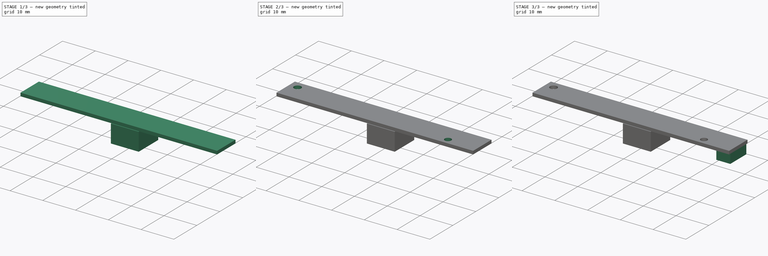
[diagram: build sequence overview — one tinted view per stage of 3, left to right]
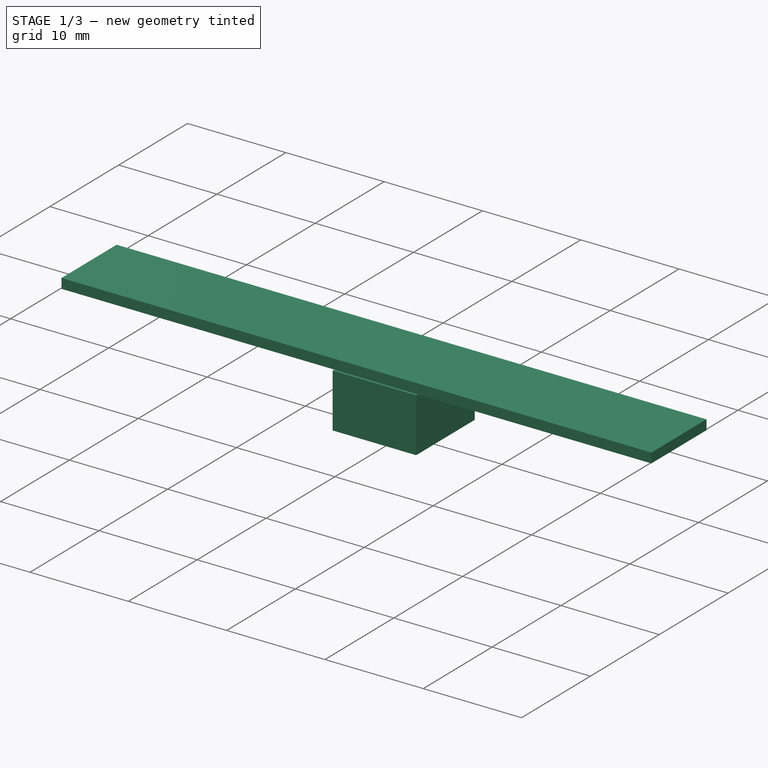
[diagram: stage 1 of 3 — iso view after this stage's code; geometry added in this stage tinted green]
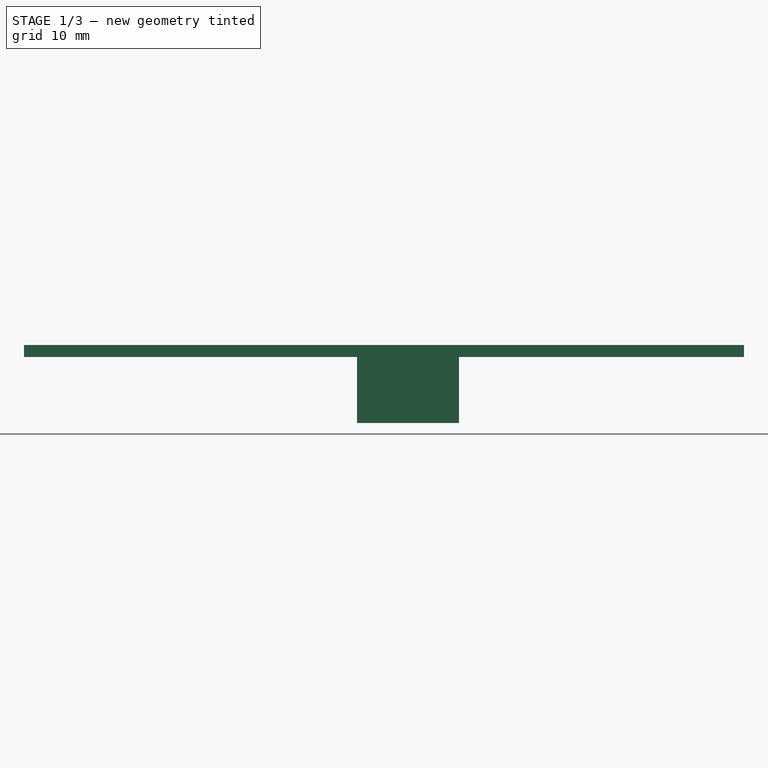
[diagram: stage 1 of 3 — front view after this stage's code; geometry added in this stage tinted green]
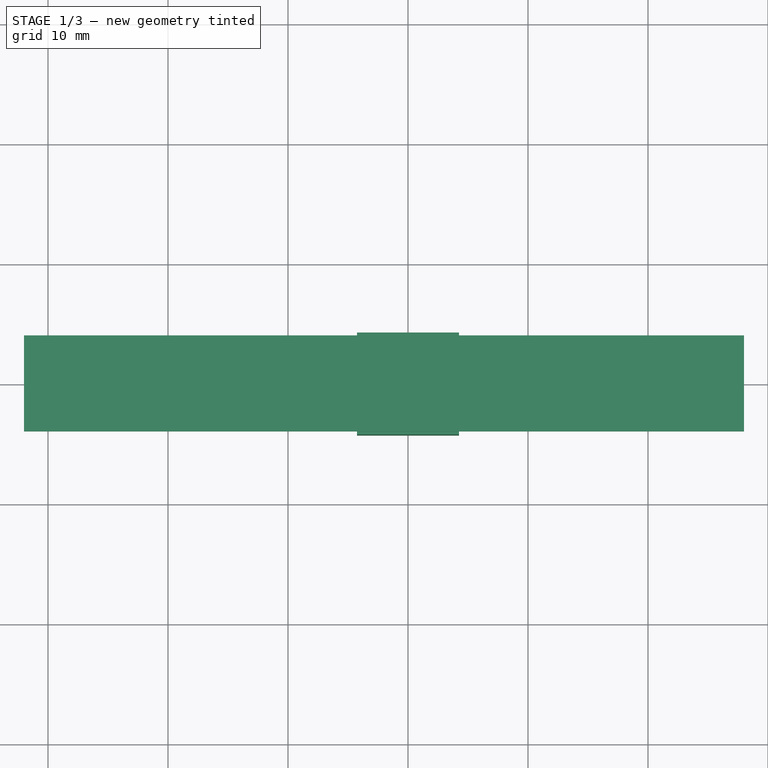
[diagram: stage 1 of 3 — top view after this stage's code; geometry added in this stage tinted green]
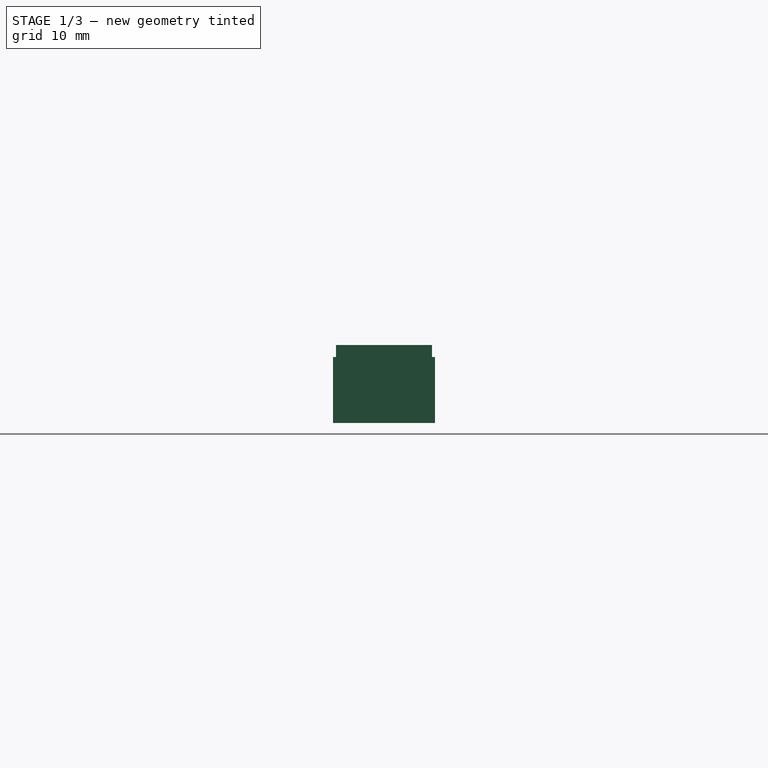
[diagram: stage 1 of 3 — right view after this stage's code; geometry added in this stage tinted green]
FCSTD DOCUMENT  (FreeCAD 0.16R5150 (Git))
Label: delock_96000
License: All rights reserved
LicenseURL: http://en.wikipedia.org/wiki/All_rights_reserved
objects: Sketcher::SketchObject×5, PartDesign::Pad×3, PartDesign::Pocket×2
note: 15 computed .brp shape members not serialized (recipe doc carries the construction recipe); baked Part::Feature solids carry a one-line shape summary decoded from their .brp

FEATURE [Sketcher::SketchObject] Sketch
  sketch-geometry (6):
    g0: LineSegment StartX=-4.25 StartY=4.25 StartZ=0 EndX=4.25 EndY=4.25 EndZ=0
    g1: LineSegment StartX=4.25 StartY=4.25 StartZ=0 EndX=4.25 EndY=-4.25 EndZ=0
    g2: LineSegment StartX=4.25 StartY=-4.25 StartZ=0 EndX=-4.25 EndY=-4.25 EndZ=0
    g3: LineSegment StartX=-4.25 StartY=-4.25 StartZ=0 EndX=-4.25 EndY=4.25 EndZ=0
    g4: LineSegment [constr] StartX=-4.25 StartY=-4.25 StartZ=0 EndX=4.25 EndY=4.25 EndZ=0
    g5: LineSegment [constr] StartX=-4.25 StartY=4.25 StartZ=0 EndX=4.25 EndY=-4.25 EndZ=0
  constraints (16):
    c: Coincident(g0,g1)
    c: Coincident(g1,g2)
    c: Coincident(g2,g3)
    c: Coincident(g3,g0)
    c: Horizontal(g0)
    c: Horizontal(g2)
    c: Vertical(g1)
    c: Vertical(g3)
    c: Distance(g0) = 8.5
    c: Distance(g3) = 8.5
    c: Coincident(g4,g2)
    c: Coincident(g4,g0)
    c: Coincident(g5,g0)
    c: Coincident(g5,g1)
    c: PointOnObject(g-1,g5)
    c: PointOnObject(g-1,g4)
FEATURE [PartDesign::Pad] Pad
  Length = 5.5
  Length2 = 100
  Sketch = -> Sketch
  Type = 0
FEATURE [Sketcher::SketchObject] Sketch001
  ExternalGeometry = -> [Pad]
  Placement = pos=(0,0,5.5) rot=(0,0,1;0rad)
  Support = -> Pad [Face6]
  sketch-geometry (12):
    g0: LineSegment StartX=-32 StartY=4 StartZ=0 EndX=28 EndY=4 EndZ=0
    g1: LineSegment StartX=28 StartY=4 StartZ=0 EndX=28 EndY=-4 EndZ=0
    g2: LineSegment StartX=28 StartY=-4 StartZ=0 EndX=-32 EndY=-4 EndZ=0
    g3: LineSegment StartX=-32 StartY=-4 StartZ=0 EndX=-32 EndY=4 EndZ=0
    g4: LineSegment StartX=-4.25 StartY=4.25 StartZ=0 EndX=4.25 EndY=4.25 EndZ=0
    g5: LineSegment [constr] StartX=4.25 StartY=4.25 StartZ=0 EndX=4.25 EndY=4 EndZ=0
    g6: LineSegment StartX=4.25 StartY=4 StartZ=0 EndX=-4.25 EndY=4 EndZ=0
    g7: LineSegment [constr] StartX=-4.25 StartY=4 StartZ=0 EndX=-4.25 EndY=4.25 EndZ=0
    g8: LineSegment StartX=-4.25 StartY=-4.25 StartZ=0 EndX=4.25 EndY=-4.25 EndZ=0
    g9: LineSegment [constr] StartX=4.25 StartY=-4.25 StartZ=0 EndX=4.25 EndY=-4 EndZ=0
    g10: LineSegment StartX=4.25 StartY=-4 StartZ=0 EndX=-4.25 EndY=-4 EndZ=0
    g11: LineSegment [constr] StartX=-4.25 StartY=-4 StartZ=0 EndX=-4.25 EndY=-4.25 EndZ=0
  constraints (34):
    c: Coincident(g0,g1)
    c: Coincident(g1,g2)
    c: Coincident(g2,g3)
    c: Coincident(g3,g0)
    c: Horizontal(g0)
    c: Horizontal(g2)
    c: Vertical(g1)
    c: Vertical(g3)
    c: Coincident(g4,g5)
    c: Coincident(g5,g6)
    c: Coincident(g6,g7)
    c: Coincident(g7,g4)
    c: Horizontal(g4)
    c: Horizontal(g6)
    c: Vertical(g5)
    c: Vertical(g7)
    c: Coincident(g4,g-3)
    c: PointOnObject(g5,g0)
    c: Coincident(g4,g-3)
    c: Coincident(g8,g9)
    c: Coincident(g9,g10)
    c: Coincident(g10,g11)
    c: Coincident(g11,g8)
    c: Horizontal(g8)
    c: Horizontal(g10)
    c: Vertical(g9)
    c: Vertical(g11)
    c: Coincident(g8,g-4)
    c: PointOnObject(g9,g2)
    c: Coincident(g8,g-4)
    c: Equal(g9,g5)
    c: DistanceY(g5,g9) = -8
    c: Distance(g2) = 60
    c: DistanceX(g-1,g2) = -32
FEATURE [PartDesign::Pad] Pad001
  Length = 1
  Length2 = 100
  Sketch = -> Sketch001
  Type = 0
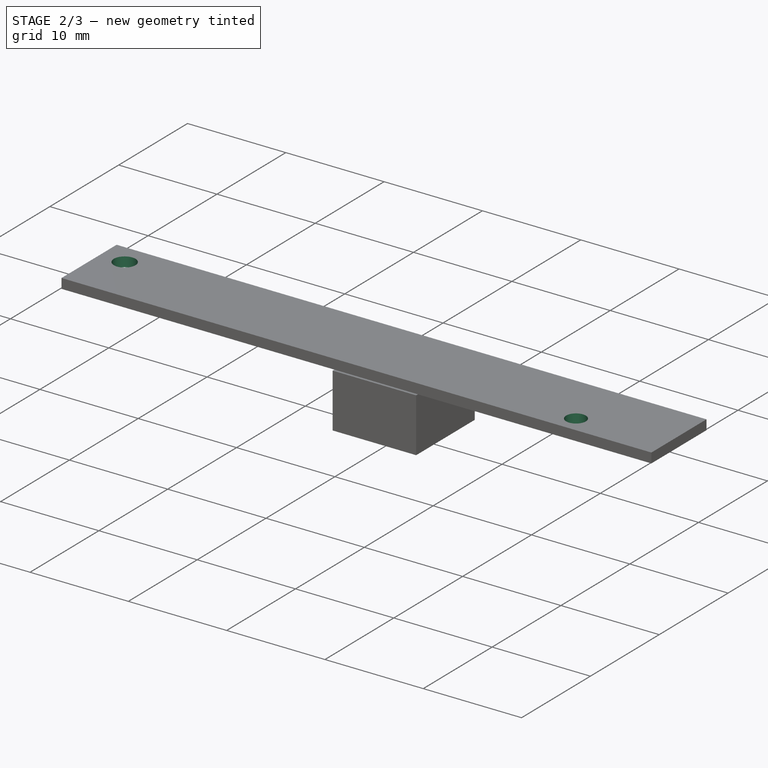
[diagram: stage 2 of 3 — iso view after this stage's code; geometry added in this stage tinted green]
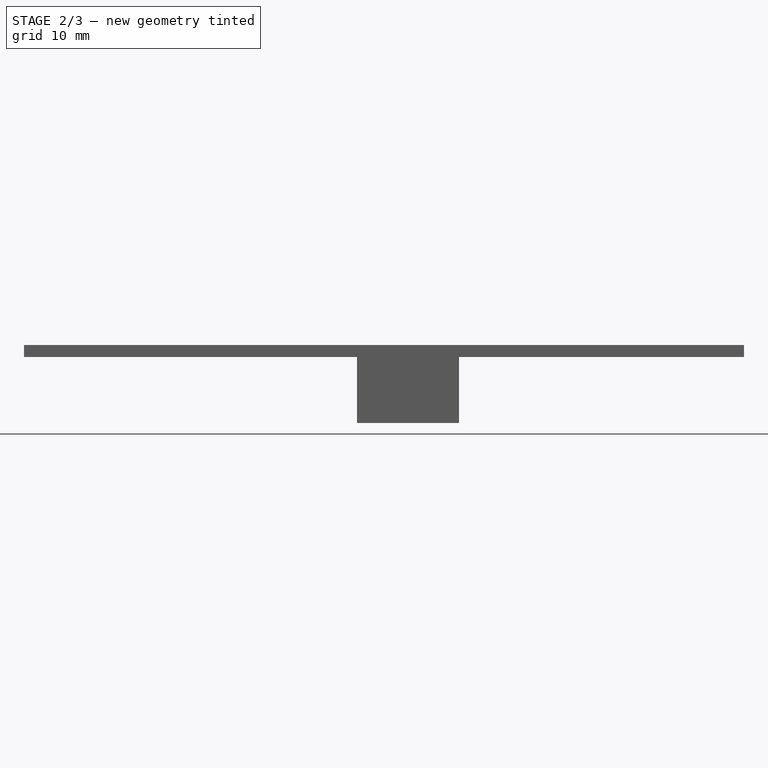
[diagram: stage 2 of 3 — front view after this stage's code; geometry added in this stage tinted green]
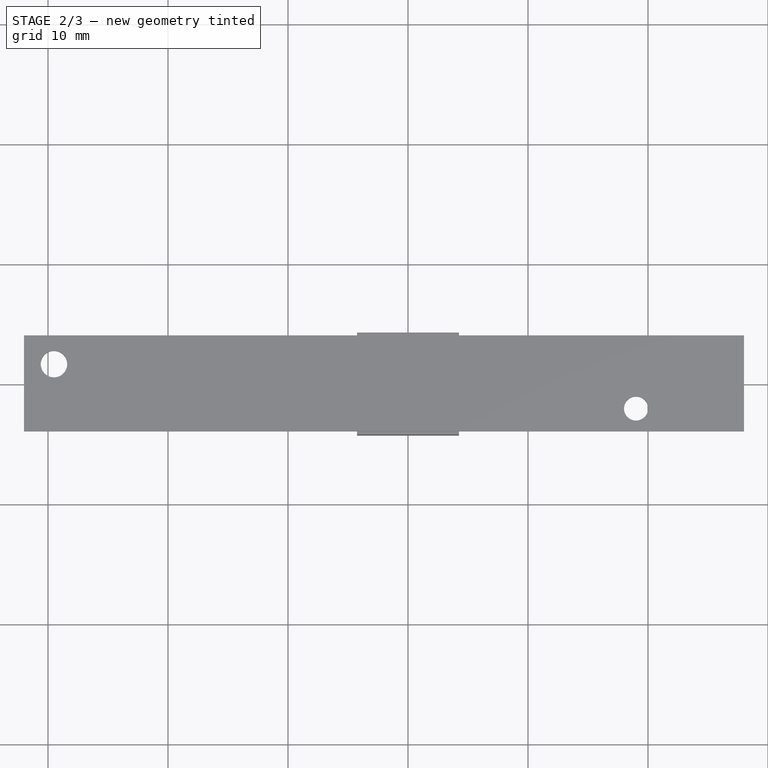
[diagram: stage 2 of 3 — top view after this stage's code; geometry added in this stage tinted green]
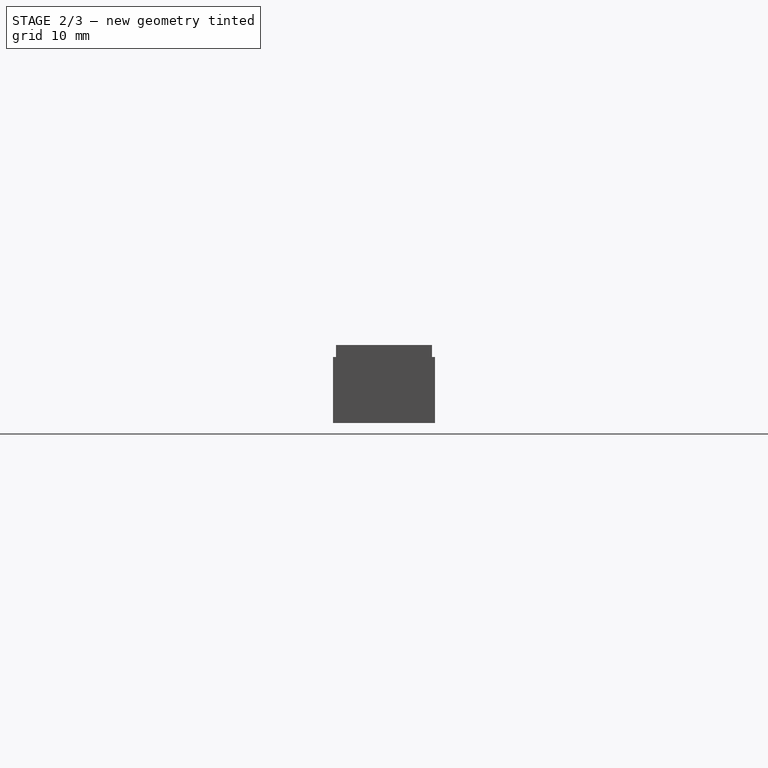
[diagram: stage 2 of 3 — right view after this stage's code; geometry added in this stage tinted green]
FEATURE [Sketcher::SketchObject] Sketch002
  ExternalGeometry = -> [Pad001]
  Placement = pos=(0,0,6.5) rot=(0,0,1;0rad)
  Support = -> Pad001 [Face14]
  sketch-geometry (2):
    g0: Circle CenterX=19 CenterY=-2.1 CenterZ=0 NormalX=0 NormalY=0 NormalZ=1 Radius=1
    g1: Circle CenterX=-29.5 CenterY=1.6 CenterZ=0 NormalX=0 NormalY=0 NormalZ=1 Radius=1.1
  constraints (6):
    c: Radius(g0) = 1
    c: Radius(g1) = 1.1
    c: DistanceY(g0,g-3) = -1.9
    c: DistanceX(g0,g-3) = 9
    c: DistanceX(g1,g-4) = -2.5
    c: DistanceY(g1,g-4) = 2.4
FEATURE [PartDesign::Pocket] Pocket
  Length = 5
  Sketch = -> Sketch002
  Type = 1
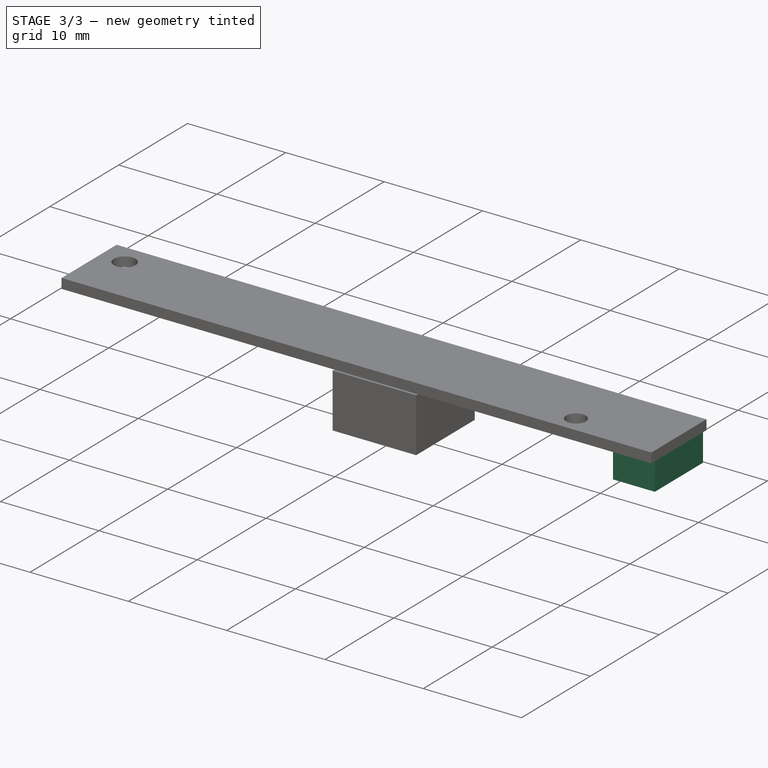
[diagram: stage 3 of 3 — iso view after this stage's code; geometry added in this stage tinted green]
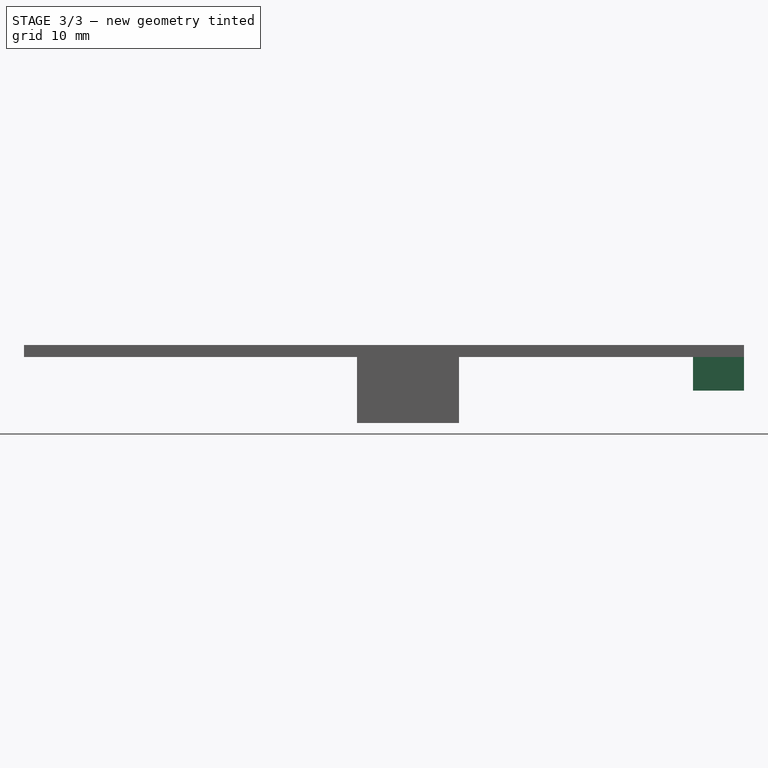
[diagram: stage 3 of 3 — front view after this stage's code; geometry added in this stage tinted green]
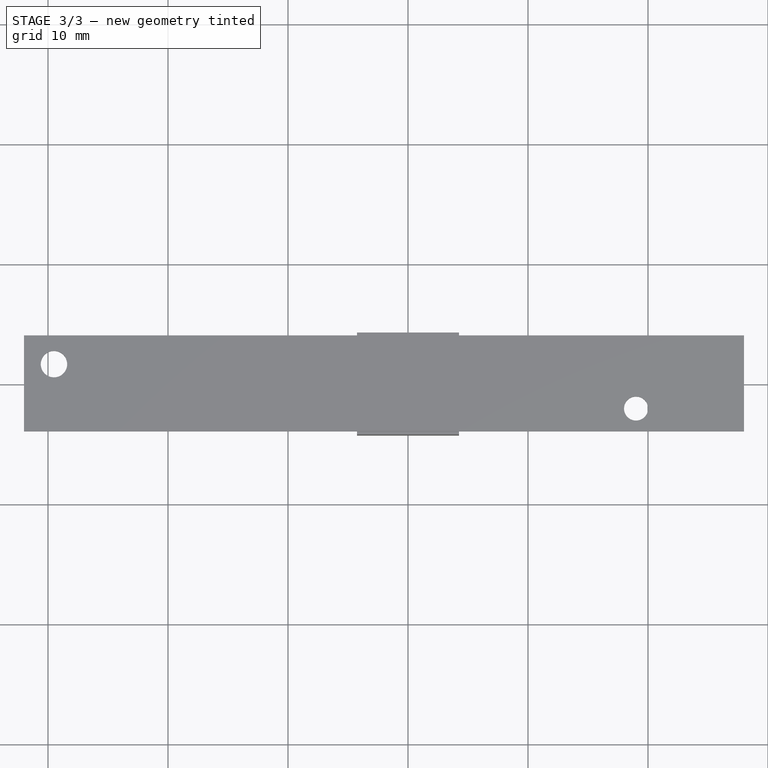
[diagram: stage 3 of 3 — top view after this stage's code; geometry added in this stage tinted green]
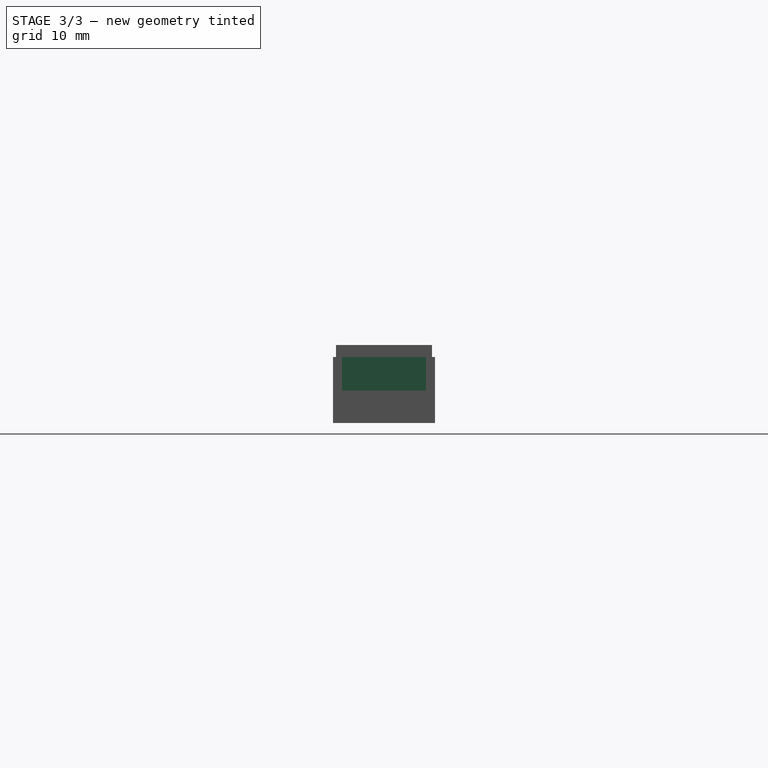
[diagram: stage 3 of 3 — right view after this stage's code; geometry added in this stage tinted green]
FEATURE [Sketcher::SketchObject] Sketch003
  ExternalGeometry = -> [Pocket]
  Placement = pos=(0,0,5.5) rot=(1,0,0;3.14159rad)
  Support = -> Pocket [Face9]
  sketch-geometry (5):
    g0: LineSegment StartX=23.75 StartY=3.5 StartZ=0 EndX=28 EndY=3.5 EndZ=0
    g1: LineSegment StartX=28 StartY=3.5 StartZ=0 EndX=28 EndY=-3.5 EndZ=0
    g2: LineSegment StartX=28 StartY=-3.5 StartZ=0 EndX=23.75 EndY=-3.5 EndZ=0
    g3: LineSegment StartX=23.75 StartY=-3.5 StartZ=0 EndX=23.75 EndY=3.5 EndZ=0
    g4: GeomPoint [constr] X=25.35 Y=0 Z=0
  constraints (13):
    c: Coincident(g0,g1)
    c: Coincident(g1,g2)
    c: Coincident(g2,g3)
    c: Coincident(g3,g0)
    c: Horizontal(g0)
    c: Horizontal(g2)
    c: Vertical(g1)
    c: Vertical(g3)
    c: Distance(g1) = 7
    c: Distance(g0) = 4.25
    c: PointOnObject(g4,g-1)
    c: Symmetric(g0,g1,g-1)
    c: PointOnObject(g0,g-3)
FEATURE [PartDesign::Pad] Pad002
  Length = 2.8
  Length2 = 100
  Sketch = -> Sketch003
  Type = 0
FEATURE [Sketcher::SketchObject] Sketch004
  ExternalGeometry = -> [Pad002]
  Placement = pos=(0,0,0) rot=(1,0,0;3.14159rad)
  Support = -> Pad002 [Face4]
  sketch-geometry (1):
    g0: Circle CenterX=0 CenterY=0 CenterZ=0 NormalX=0 NormalY=0 NormalZ=1 Radius=1.5
  constraints (2):
    c: Coincident(g0,g-1)
    c: Radius(g0) = 1.5
FEATURE [PartDesign::Pocket] Pocket001
  Length = 1
  Sketch = -> Sketch004
  Type = 0
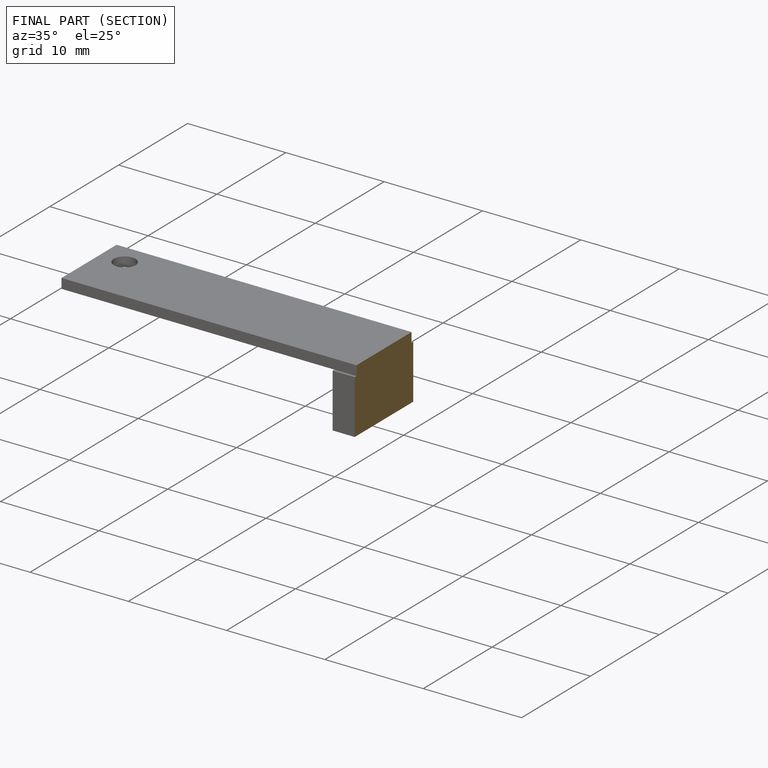
[diagram: finished part — half-section view (interior)]
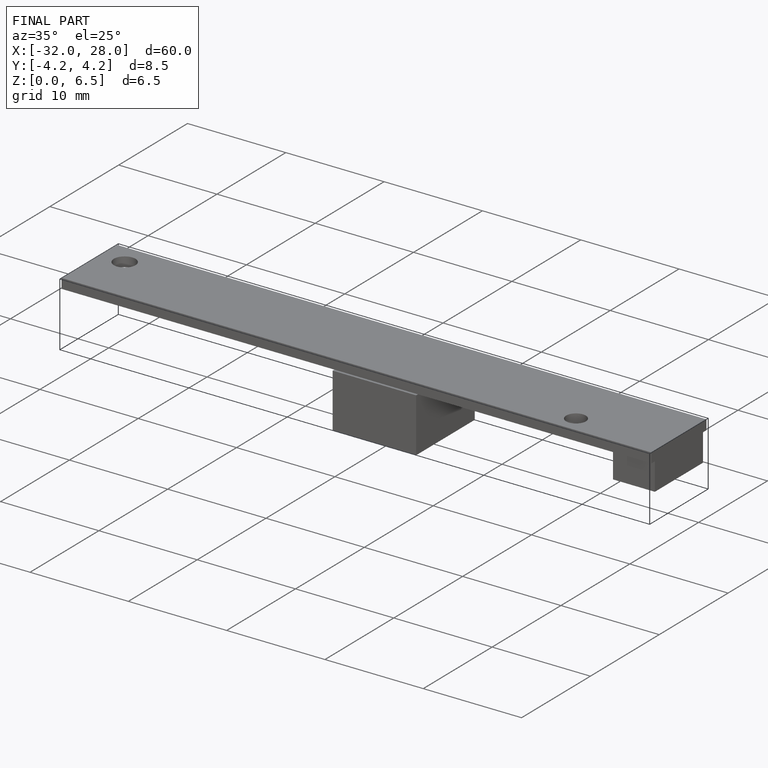
[diagram: finished part — iso view with bounding-box wireframe]
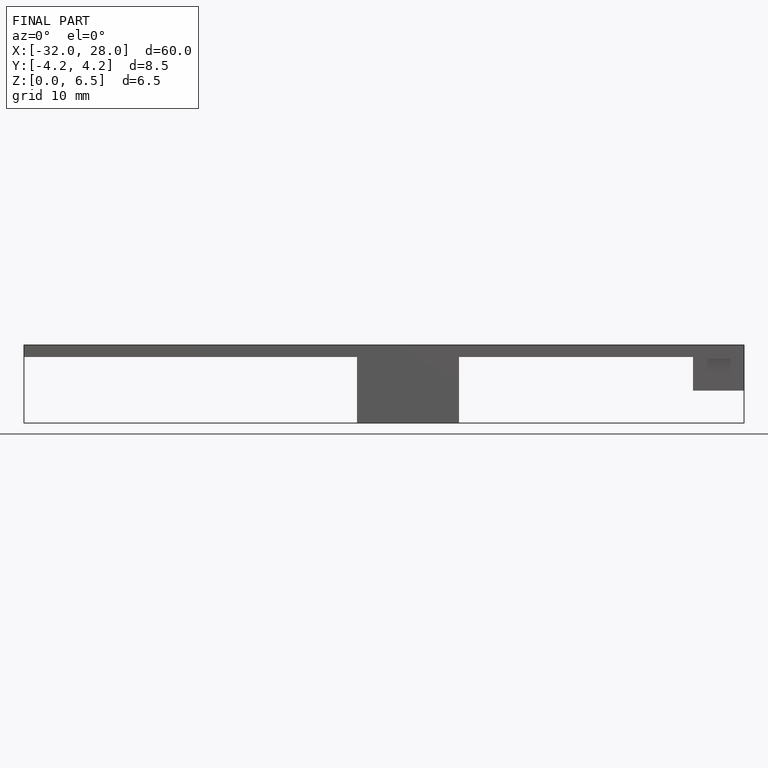
[diagram: finished part — front view with bounding-box wireframe]
